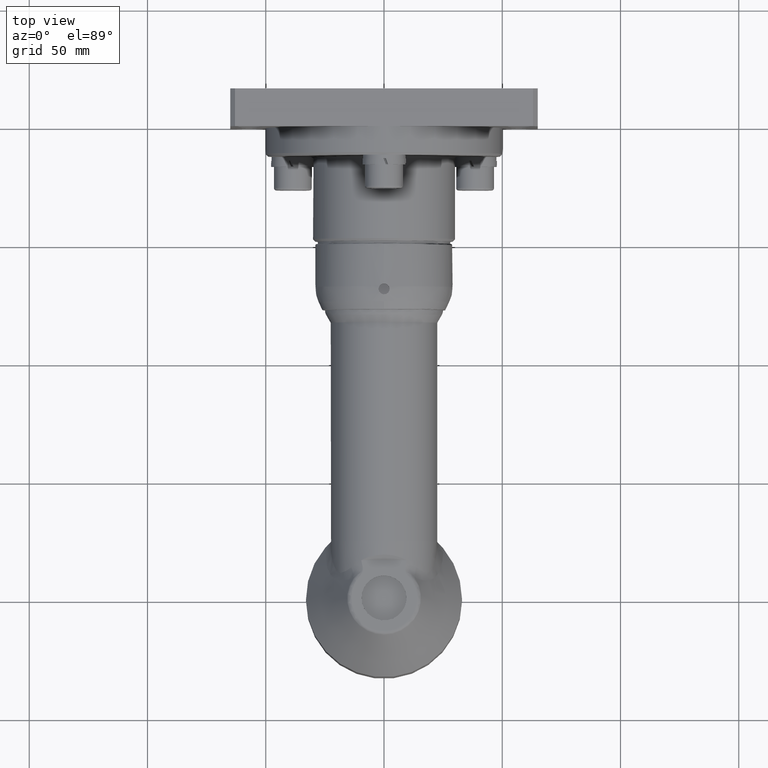
[diagram: clean part render]
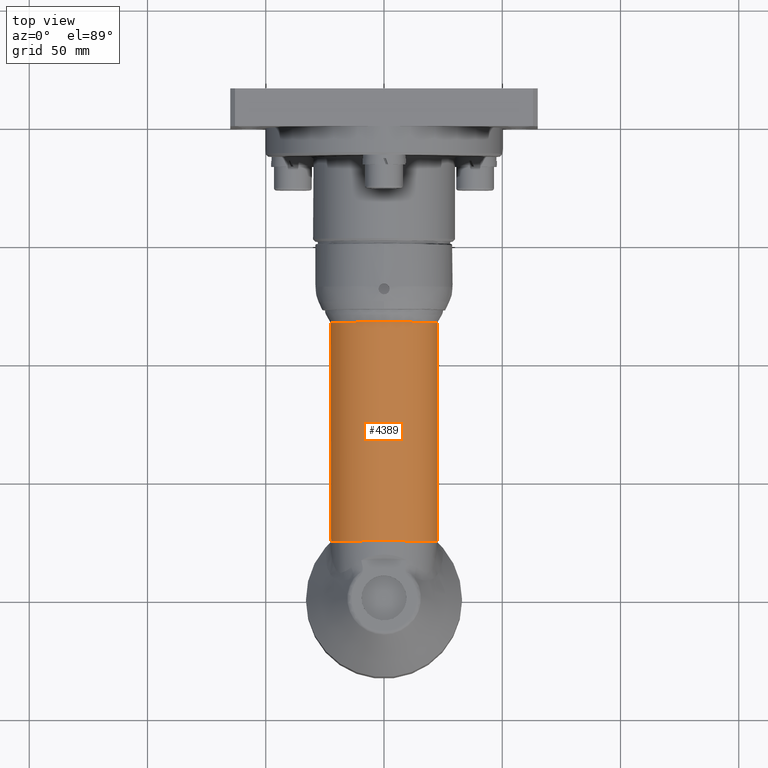
[diagram: same view with one face highlighted and labeled with its STEP entity id]
A machine part, top view. The second image highlights one B-rep face of the part: STEP entity #4389.
In plain terms, the highlighted cylindrical surface (bore or boss wall) has radius 22.5 mm, axis along (0, 1, -0).
Its self-contained STEP definition (entity closure, byte-faithful):
#113=B_SPLINE_CURVE_WITH_KNOTS('',3,(#7778,#7779,#7780,#7781),
 .UNSPECIFIED.,.F.,.F.,(4,4),(3.71658920185842,3.90835851780685),
 .UNSPECIFIED.);
#114=B_SPLINE_CURVE_WITH_KNOTS('',3,(#7782,#7783,#7784,#7785),
 .UNSPECIFIED.,.F.,.F.,(4,4),(3.90835851780685,3.92410773251652),
 .UNSPECIFIED.);
#117=B_SPLINE_CURVE_WITH_KNOTS('',3,(#7849,#7850,#7851,#7852),
 .UNSPECIFIED.,.F.,.F.,(4,4),(1.84879626133252E-13,0.0157492147731019),
 .UNSPECIFIED.);
#118=B_SPLINE_CURVE_WITH_KNOTS('',3,(#7854,#7855,#7856,#7857),
 .UNSPECIFIED.,.F.,.F.,(4,4),(0.0157492147731021,0.207518535672457),
 .UNSPECIFIED.);
#120=B_SPLINE_CURVE_WITH_KNOTS('',3,(#7962,#7963,#7964,#7965,#7966,#7967,
#7968,#7969,#7970,#7971,#7972,#7973,#7974),.UNSPECIFIED.,.F.,.F.,(4,1,1,
1,1,1,1,1,1,1,4),(12.8975296232329,13.4395425912898,13.9815555593467,15.0655814954605,
16.1496074315742,17.233633367688,17.5949753463926,18.3176593038018,19.4016852399156,
19.9436982079725,20.4857111760294),.UNSPECIFIED.);
#206=LINE('',#7961,#425);
#425=VECTOR('',#5564,22.5);
#622=CYLINDRICAL_SURFACE('',#4749,22.5);
#798=FACE_OUTER_BOUND('',#1058,.T.);
#1058=EDGE_LOOP('',(#3178,#3179,#3180,#3181,#3182,#3183,#3184,#3185,#3186,
#3187,#3188));
#1376=CIRCLE('',#4736,22.5);
#1377=CIRCLE('',#4737,22.5);
#1382=CIRCLE('',#4745,22.5);
#1383=CIRCLE('',#4746,22.5);
#1786=VERTEX_POINT('',#7517);
#1787=VERTEX_POINT('',#7519);
#1793=VERTEX_POINT('',#7717);
#1794=VERTEX_POINT('',#7748);
#1795=VERTEX_POINT('',#7777);
#1797=VERTEX_POINT('',#7808);
#1798=VERTEX_POINT('',#7824);
#1799=VERTEX_POINT('',#7848);
#1800=VERTEX_POINT('',#7853);
#2294=EDGE_CURVE('',#1786,#1787,#1376,.T.);
#2295=EDGE_CURVE('',#1787,#1786,#1377,.T.);
#2309=EDGE_CURVE('',#1794,#1795,#113,.T.);
#2310=EDGE_CURVE('',#1795,#1793,#114,.T.);
#2313=EDGE_CURVE('',#1798,#1793,#1382,.T.);
#2314=EDGE_CURVE('',#1797,#1798,#1383,.T.);
#2316=EDGE_CURVE('',#1797,#1799,#117,.T.);
#2317=EDGE_CURVE('',#1799,#1800,#118,.T.);
#2320=EDGE_CURVE('',#1786,#1798,#206,.T.);
#2321=EDGE_CURVE('',#1800,#1794,#120,.T.);
#3178=ORIENTED_EDGE('',*,*,#2295,.F.);
#3179=ORIENTED_EDGE('',*,*,#2294,.F.);
#3180=ORIENTED_EDGE('',*,*,#2320,.T.);
#3181=ORIENTED_EDGE('',*,*,#2313,.T.);
#3182=ORIENTED_EDGE('',*,*,#2310,.F.);
#3183=ORIENTED_EDGE('',*,*,#2309,.F.);
#3184=ORIENTED_EDGE('',*,*,#2321,.F.);
#3185=ORIENTED_EDGE('',*,*,#2317,.F.);
#3186=ORIENTED_EDGE('',*,*,#2316,.F.);
#3187=ORIENTED_EDGE('',*,*,#2314,.T.);
#3188=ORIENTED_EDGE('',*,*,#2320,.F.);
#4389=ADVANCED_FACE('',(#798),#622,.T.);
#4736=AXIS2_PLACEMENT_3D('',#7520,#5536,#5537);
#4737=AXIS2_PLACEMENT_3D('',#7521,#5538,#5539);
#4745=AXIS2_PLACEMENT_3D('',#7825,#5554,#5555);
#4746=AXIS2_PLACEMENT_3D('',#7826,#5556,#5557);
#4749=AXIS2_PLACEMENT_3D('',#7960,#5562,#5563);
#5536=DIRECTION('center_axis',(5.4632067194463E-16,1.,-1.08559870364431E-30));
#5537=DIRECTION('ref_axis',(1.,-5.4632067194463E-16,2.39031970244941E-15));
#5538=DIRECTION('center_axis',(5.4632067194463E-16,1.,-1.08559870364431E-30));
#5539=DIRECTION('ref_axis',(1.,-5.4632067194463E-16,2.39031970244941E-15));
#5554=DIRECTION('center_axis',(5.4632067194463E-16,1.,-1.08559870364431E-30));
#5555=DIRECTION('ref_axis',(1.,-5.4632067194463E-16,2.39031970244941E-15));
#5556=DIRECTION('center_axis',(5.4632067194463E-16,1.,-1.08559870364431E-30));
#5557=DIRECTION('ref_axis',(1.,-5.4632067194463E-16,2.39031970244941E-15));
#5562=DIRECTION('center_axis',(5.4632067194463E-16,1.,-1.08559870364431E-30));
#5563=DIRECTION('ref_axis',(-1.,6.70462140602243E-16,-2.39031970244941E-15));
#5564=DIRECTION('',(-5.4632067194463E-16,-1.,1.08559870364431E-30));
#7517=CARTESIAN_POINT('',(22.5000000000001,116.669872981078,5.10267380070301E-14));
#7519=CARTESIAN_POINT('',(-22.4999999999999,116.669872981078,-5.37821933051119E-14));
#7520=CARTESIAN_POINT('Origin',(6.3705101825492E-14,116.669872981078,-1.26738080921742E-28));
#7521=CARTESIAN_POINT('Origin',(6.3705101825492E-14,116.669872981078,-1.26738080921742E-28));
#7717=CARTESIAN_POINT('',(22.3813309469477,24.1402154091545,-2.30781824310387));
#7748=CARTESIAN_POINT('',(22.2538632720657,25.6884971729727,-3.31897114603385));
#7777=CARTESIAN_POINT('',(22.3732641954983,24.25772143542,-2.38475349636666));
#7778=CARTESIAN_POINT('Ctrl Pts',(22.2538675606481,25.6884950065103,-3.31897511152921));
#7779=CARTESIAN_POINT('Ctrl Pts',(22.3001911922604,25.2116813621582,-3.00838052544988));
#7780=CARTESIAN_POINT('Ctrl Pts',(22.3399879450774,24.7346629216564,-2.69695608119966));
#7781=CARTESIAN_POINT('Ctrl Pts',(22.3732643250659,24.2577213646658,-2.38475361826558));
#7782=CARTESIAN_POINT('Ctrl Pts',(22.3732643250659,24.2577213646658,-2.38475361826559));
#7783=CARTESIAN_POINT('Ctrl Pts',(22.3759971754732,24.2185521422704,-2.35911373110576));
#7784=CARTESIAN_POINT('Ctrl Pts',(22.3786860482325,24.1793834384275,-2.33346859648038));
#7785=CARTESIAN_POINT('Ctrl Pts',(22.3813309469477,24.1402154091624,-2.30781824310387));
#7808=CARTESIAN_POINT('',(-22.3813309469481,24.1402154091505,-2.30781824309907));
#7824=CARTESIAN_POINT('',(22.5,24.1402154091466,5.10267380070302E-14));
#7825=CARTESIAN_POINT('Origin',(1.31542371259879E-14,24.1402154091466,-2.62880046130018E-29));
#7826=CARTESIAN_POINT('Origin',(1.31542371259879E-14,24.1402154091466,-2.62880046130018E-29));
#7848=CARTESIAN_POINT('',(-22.3732641954983,24.25772143542,-2.38475349636676));
#7849=CARTESIAN_POINT('Ctrl Pts',(-22.3813309469482,24.1402154091535,-2.30781824309816));
#7850=CARTESIAN_POINT('Ctrl Pts',(-22.3786860482225,24.1793834385759,-2.33346859657768));
#7851=CARTESIAN_POINT('Ctrl Pts',(-22.3759971758375,24.2185521422285,-2.3591137315247));
#7852=CARTESIAN_POINT('Ctrl Pts',(-22.3732643261392,24.2577213641316,-2.38475361919612));
#7853=CARTESIAN_POINT('',(-22.2538632720653,25.6884971729731,-3.31897114603628));
#7854=CARTESIAN_POINT('Ctrl Pts',(-22.3732643261392,24.2577213641316,-2.38475361919612));
#7855=CARTESIAN_POINT('Ctrl Pts',(-22.3399879540573,24.7346629255251,-2.69695609516593));
#7856=CARTESIAN_POINT('Ctrl Pts',(-22.3001912584587,25.2116813256516,-3.00838058058211));
#7857=CARTESIAN_POINT('Ctrl Pts',(-22.2538676421733,25.6884949670918,-3.31897518420534));
#7960=CARTESIAN_POINT('Origin',(3.84296694757399E-14,70.4050441951122,-7.65130427673721E-29));
#7961=CARTESIAN_POINT('',(22.5,70.4050441951122,5.10267380070301E-14));
#7962=CARTESIAN_POINT('Ctrl Pts',(-22.2538632720653,25.6884971729732,-3.31897114603628));
#7963=CARTESIAN_POINT('Ctrl Pts',(-22.0211088188798,25.9474854110019,-4.87960109708046));
#7964=CARTESIAN_POINT('Ctrl Pts',(-21.2356177663879,26.8103063765241,-7.90126816565667));
#7965=CARTESIAN_POINT('Ctrl Pts',(-18.5695191919226,29.3477000065571,-13.2867213619592));
#7966=CARTESIAN_POINT('Ctrl Pts',(-13.5279762502794,33.0072953857396,-18.7179396628299));
#7967=CARTESIAN_POINT('Ctrl Pts',(-4.95131957212588,36.1151107042787,-22.6519728019989));
#7968=CARTESIAN_POINT('Ctrl Pts',(2.74673002511739,36.130173255286,-22.6640508499271));
#7969=CARTESIAN_POINT('Ctrl Pts',(8.77390762699751,34.7273680347815,-20.8979737787844));
#7970=CARTESIAN_POINT('Ctrl Pts',(14.1884729601957,32.5274435815639,-18.002668922019));
#7971=CARTESIAN_POINT('Ctrl Pts',(18.5746668137325,29.3437604225821,-13.2829095153016));
#7972=CARTESIAN_POINT('Ctrl Pts',(21.2336366741021,26.8117362130904,-7.90229455769193));
#7973=CARTESIAN_POINT('Ctrl Pts',(22.02111153923,25.9474823840406,-4.87958285700064));
#7974=CARTESIAN_POINT('Ctrl Pts',(22.2538632720657,25.6884971729727,-3.31897114603388));